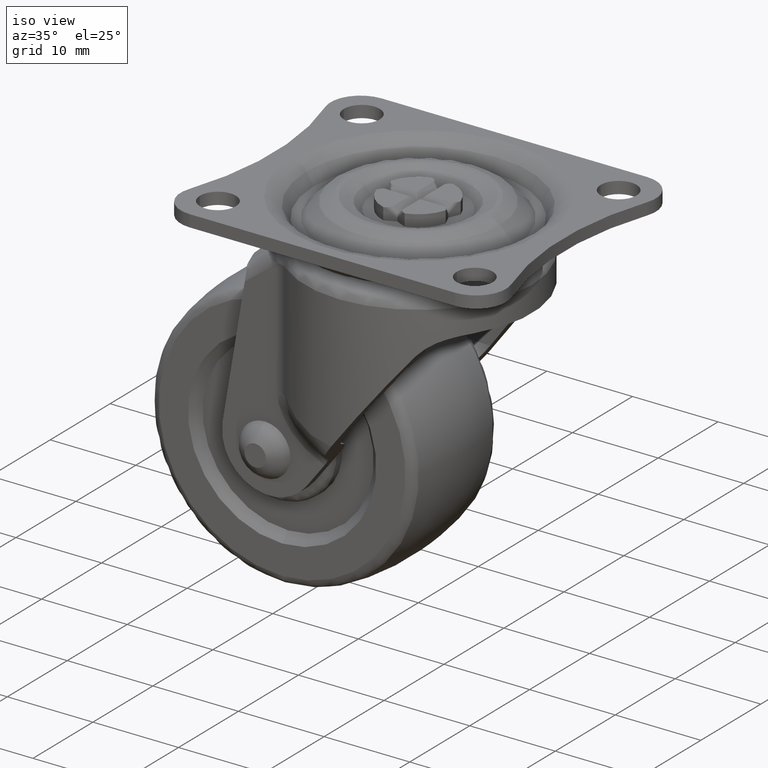
[diagram: clean part render]
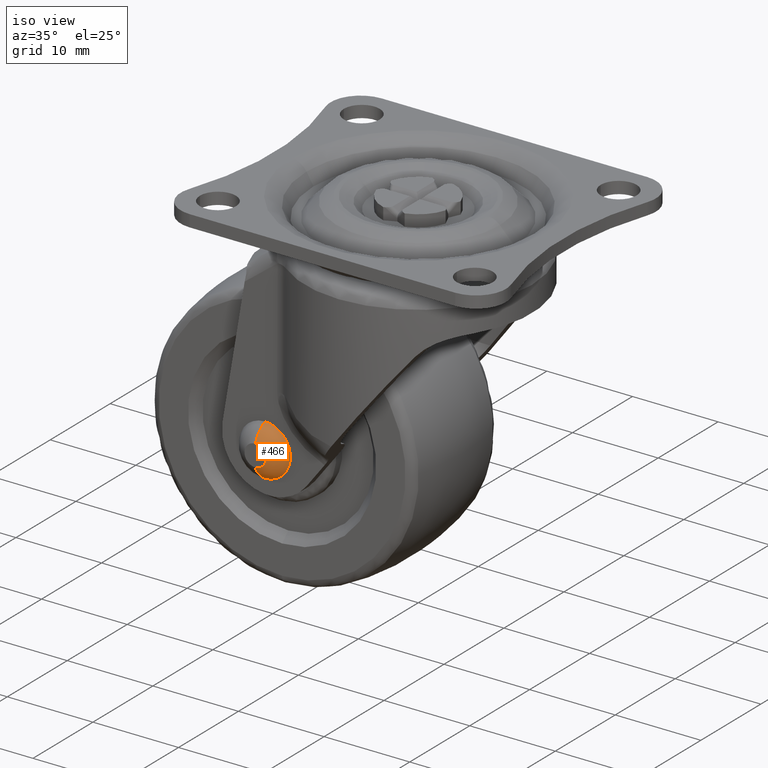
[diagram: same view with one face highlighted and labeled with its STEP entity id]
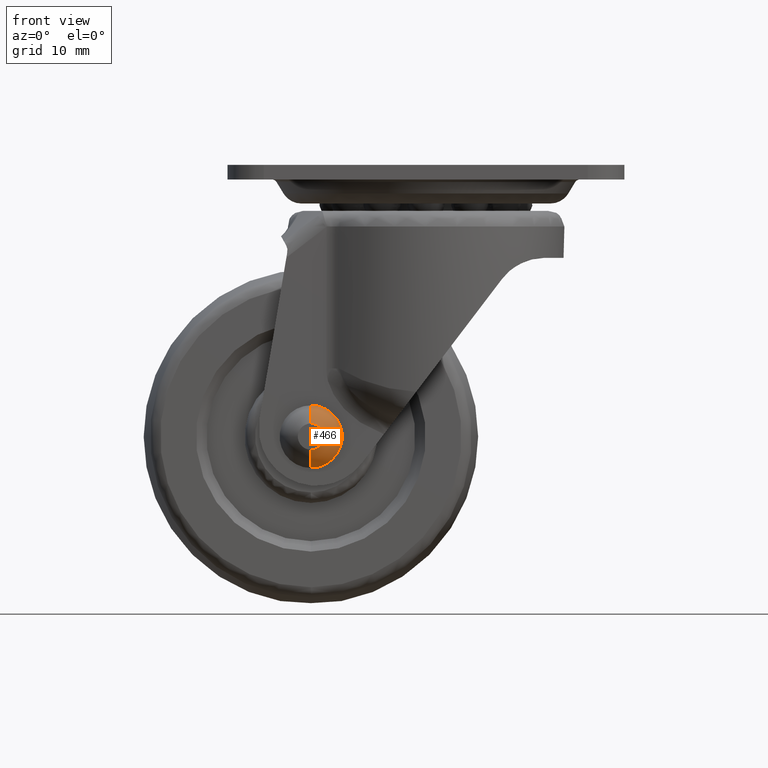
[diagram: same view with one face highlighted and labeled with its STEP entity id]
A machine part, iso view. The second image highlights one B-rep face of the part: STEP entity #466.
A second angle (front view) of the same face is appended — the face is thin or edge-on in the first view.
In plain terms, the highlighted spherical surface has radius 3.3665 mm.
Its self-contained STEP definition (entity closure, byte-faithful):
#466=ADVANCED_FACE('',(#2947),#2946,.T.);
#2946=SPHERICAL_SURFACE('',#5367,3.36653300000E+00);
#2947=FACE_OUTER_BOUND('',#5368,.T.);
#5364=CARTESIAN_POINT('',(-1.10000000000E+01,-8.36441800000E+00,-2.60000000000E+01));
#5365=DIRECTION('',(0.00000000000E+00,1.00000000000E+00,0.00000000000E+00));
#5366=DIRECTION('',(4.44085165318E-16,0.00000000000E+00,1.00000000000E+00));
#5367=AXIS2_PLACEMENT_3D('',#5364,#5365,#5366);
#5368=EDGE_LOOP('',(#6635,#6636,#6637,#6638));
#6635=ORIENTED_EDGE('',*,*,#7238,.T.);
#6636=ORIENTED_EDGE('',*,*,#7245,.T.);
#6637=ORIENTED_EDGE('',*,*,#7227,.F.);
#6638=ORIENTED_EDGE('',*,*,#7246,.F.);
#7227=EDGE_CURVE('',#11070,#11071,#11072,.T.);
#7238=EDGE_CURVE('',#11127,#11126,#11147,.T.);
#7245=EDGE_CURVE('',#11126,#11071,#11191,.T.);
#7246=EDGE_CURVE('',#11127,#11070,#11197,.T.);
#11070=VERTEX_POINT('',#14248);
#11071=VERTEX_POINT('',#14249);
#11072=CIRCLE('',#14253,2.99591825974E+00);
#11126=VERTEX_POINT('',#14288);
#11127=VERTEX_POINT('',#14289);
#11147=CIRCLE('',#14302,1.25406830450E+00);
#11191=(BOUNDED_CURVE() B_SPLINE_CURVE(2,(#14321,#14322,#14323),.UNSPECIFIED.,.F.,.F.) B_SPLINE_CURVE_WITH_KNOTS((3,3),(0.00000000000E+00,1.00000000000E+00),.UNSPECIFIED.) CURVE() GEOMETRIC_REPRESENTATION_ITEM() RATIONAL_B_SPLINE_CURVE((1.00000000000E+00,9.36697622361E-01,1.00000000000E+00)) REPRESENTATION_ITEM('') );
#11197=(BOUNDED_CURVE() B_SPLINE_CURVE(2,(#14324,#14325,#14326),.UNSPECIFIED.,.F.,.F.) B_SPLINE_CURVE_WITH_KNOTS((3,3),(0.00000000000E+00,1.00000000000E+00),.UNSPECIFIED.) CURVE() GEOMETRIC_REPRESENTATION_ITEM() RATIONAL_B_SPLINE_CURVE((7.50000000000E-01,7.02523216771E-01,7.50000000000E-01)) REPRESENTATION_ITEM('') );
#14248=CARTESIAN_POINT('',(-1.10000000000E+01,-9.90000200000E+00,-2.30040817403E+01));
#14249=CARTESIAN_POINT('',(-1.10000000000E+01,-9.90000200000E+00,-2.89959182597E+01));
#14250=CARTESIAN_POINT('',(-1.10000000000E+01,-9.90000200000E+00,-2.60000000000E+01));
#14251=DIRECTION('',(0.00000000000E+00,1.00000000000E+00,0.00000000000E+00));
#14252=DIRECTION('',(-1.22460635382E-16,0.00000000000E+00,1.00000000000E+00));
#14253=AXIS2_PLACEMENT_3D('',#14250,#14251,#14252);
#14288=CARTESIAN_POINT('',(-1.10000000000E+01,-1.14886550473E+01,-2.72540683045E+01));
#14289=CARTESIAN_POINT('',(-1.10000000000E+01,-1.14886550473E+01,-2.47459316955E+01));
#14299=CARTESIAN_POINT('',(-1.10000000000E+01,-1.14886550473E+01,-2.60000000000E+01));
#14300=DIRECTION('',(0.00000000000E+00,1.00000000000E+00,0.00000000000E+00));
#14301=DIRECTION('',(-1.22460635382E-16,0.00000000000E+00,1.00000000000E+00));
#14302=AXIS2_PLACEMENT_3D('',#14299,#14300,#14301);
#14321=CARTESIAN_POINT('',(-1.10000000000E+01,-1.14886550473E+01,-2.72540683045E+01));
#14322=CARTESIAN_POINT('',(-1.10000000000E+01,-1.10198819339E+01,-2.84219140449E+01));
#14323=CARTESIAN_POINT('',(-1.10000000000E+01,-9.90000200000E+00,-2.89959182597E+01));
#14324=CARTESIAN_POINT('',(-1.10000000000E+01,-1.14886550473E+01,-2.47459316955E+01));
#14325=CARTESIAN_POINT('',(-1.10000000000E+01,-1.10198819339E+01,-2.35780859551E+01));
#14326=CARTESIAN_POINT('',(-1.10000000000E+01,-9.90000200000E+00,-2.30040817403E+01));